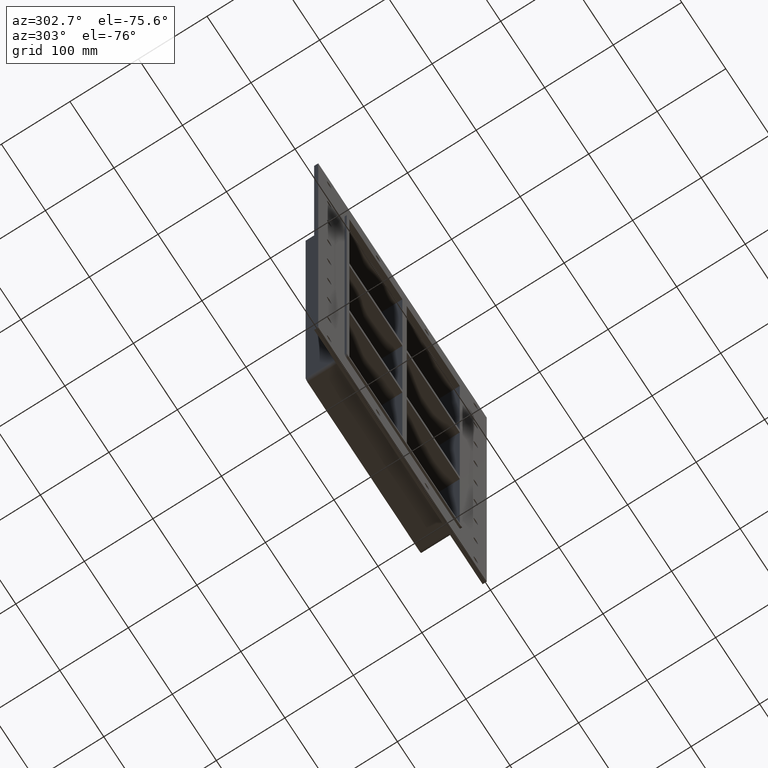
[diagram: clean part render]
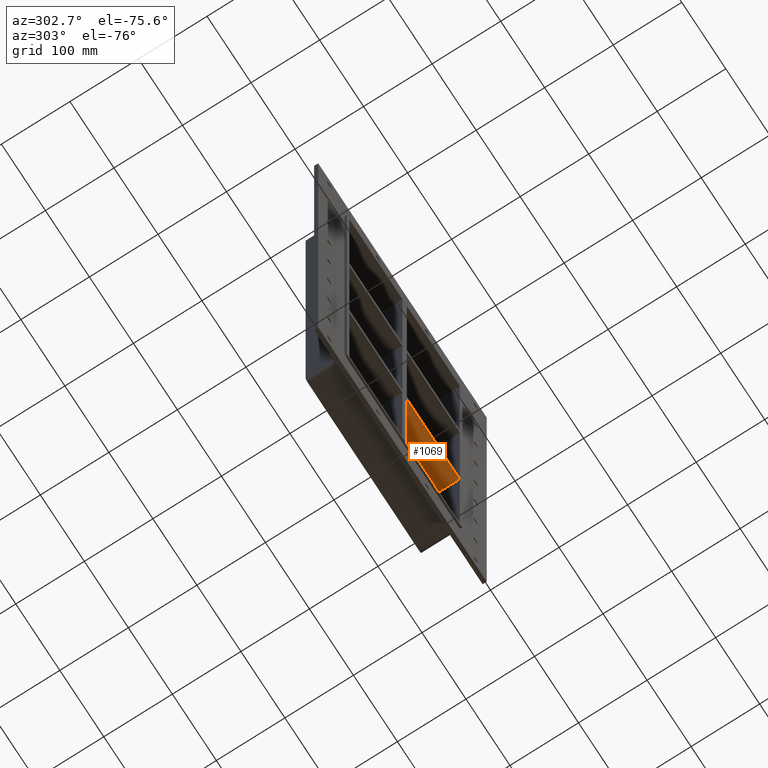
[diagram: same view with one face highlighted and labeled with its STEP entity id]
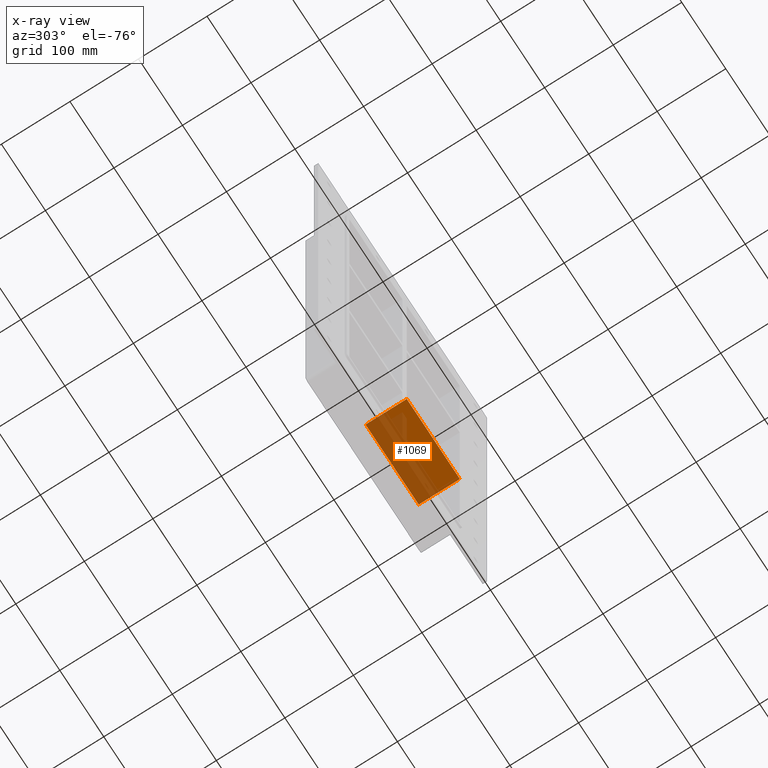
[diagram: x-ray of the same camera — body ghosted, the highlighted face saturated]
A machine part, auxiliary view. The second image highlights one B-rep face of the part: STEP entity #1069.
The next image is the same camera in x-ray: the body ghosted, the highlighted face saturated — about 55% of this face is hidden behind the body in this view.
In plain terms, the highlighted planar face has unit normal (0, 0, -1).
Its self-contained STEP definition (entity closure, byte-faithful):
#1030=CARTESIAN_POINT('',(125.50000000000182,-3.0,-121.00000000000934));
#1031=DIRECTION('',(0.0,0.0,-1.0));
#1032=DIRECTION('',(-1.0,0.0,0.0));
#1033=AXIS2_PLACEMENT_3D('',#1030,#1031,#1032);
#1034=PLANE('',#1033);
#1035=CARTESIAN_POINT('',(5.0,57.0,-121.00000000000934));
#1036=VERTEX_POINT('',#1035);
#1037=CARTESIAN_POINT('',(5.0,-3.0,-121.00000000000934));
#1038=VERTEX_POINT('',#1037);
#1039=CARTESIAN_POINT('',(5.0,57.0,-121.00000000000932));
#1040=DIRECTION('',(0.0,-1.0,0.0));
#1041=VECTOR('',#1040,60.0);
#1042=LINE('',#1039,#1041);
#1043=EDGE_CURVE('',#1036,#1038,#1042,.T.);
#1044=ORIENTED_EDGE('',*,*,#1043,.F.);
#1045=CARTESIAN_POINT('',(125.5000000000018,57.0,-121.00000000000934));
#1046=VERTEX_POINT('',#1045);
#1047=CARTESIAN_POINT('',(125.50000000000182,57.0,-121.00000000000934));
#1048=DIRECTION('',(-1.0,0.0,0.0));
#1049=VECTOR('',#1048,120.50000000000182);
#1050=LINE('',#1047,#1049);
#1051=EDGE_CURVE('',#1046,#1036,#1050,.T.);
#1052=ORIENTED_EDGE('',*,*,#1051,.F.);
#1053=CARTESIAN_POINT('',(125.50000000000182,-3.0,-121.00000000000934));
#1054=VERTEX_POINT('',#1053);
#1055=CARTESIAN_POINT('',(125.5,-3.0,-121.00000000000932));
#1056=DIRECTION('',(0.0,1.0,0.0));
#1057=VECTOR('',#1056,60.000000000000007);
#1058=LINE('',#1055,#1057);
#1059=EDGE_CURVE('',#1054,#1046,#1058,.T.);
#1060=ORIENTED_EDGE('',*,*,#1059,.F.);
#1061=CARTESIAN_POINT('',(125.50000000000182,-3.0,-121.00000000000934));
#1062=DIRECTION('',(-1.0,0.0,0.0));
#1063=VECTOR('',#1062,120.50000000000182);
#1064=LINE('',#1061,#1063);
#1065=EDGE_CURVE('',#1054,#1038,#1064,.T.);
#1066=ORIENTED_EDGE('',*,*,#1065,.T.);
#1067=EDGE_LOOP('',(#1044,#1052,#1060,#1066));
#1068=FACE_OUTER_BOUND('',#1067,.T.);
#1069=ADVANCED_FACE('',(#1068),#1034,.T.);